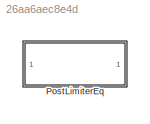
MODEL slx_26aa6aec8e4d
KIND library
CONFIG AbsTol = auto
CONFIG EnableMultiTasking = off
CONFIG FixedStep = auto
CONFIG MaxStep = auto
CONFIG MinStep = auto
CONFIG RelTol = 1e-3
CONFIG SampleTimeConstraint = Unconstrained
CONFIG SolverName = VariableStepAuto
CONFIG StartTime = 0.0
CONFIG StopTime = 10.0
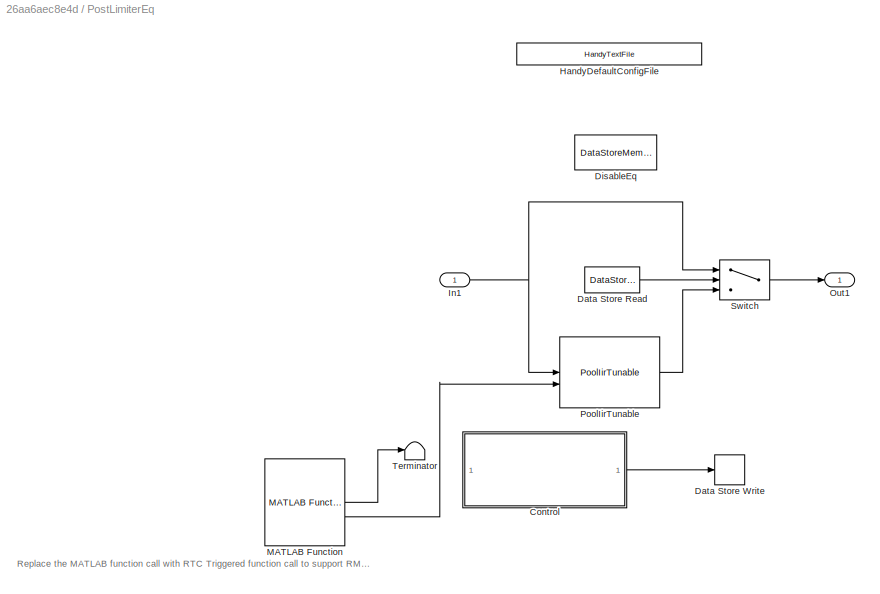
BLOCK [SubSystem] PostLimiterEq
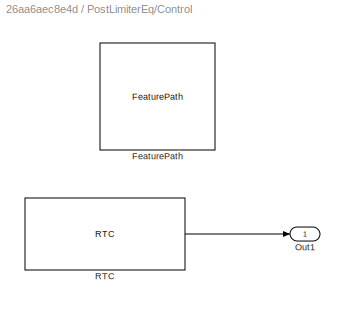
BLOCK [SubSystem] PostLimiterEq/Control
BLOCK [Reference] PostLimiterEq/Control/FeaturePath  REF=FeaturePath/FeaturePath
  SourceBlock = FeaturePath/FeaturePath
  SourceProductName = Bose Talaria
  SourceType = Talaria Feature Path
BLOCK [Outport] PostLimiterEq/Control/Out1
BLOCK [Reference] PostLimiterEq/Control/RTC  REF=RTC/RTC
  SourceBlock = RTC/RTC
  SourceProductName = Bose Talaria
  SourceType = Talaria RTC Receive
BLOCK [DataStoreRead] PostLimiterEq/Data Store Read
  DataStoreName = DisableEQ
  IndexOptions = Index vector (dialog)
  Indices = 1
  OutputSizes = 1
BLOCK [DataStoreWrite] PostLimiterEq/Data Store Write
  DataStoreName = DisableEQ
  IndexOptions = Index vector (dialog)
  Indices = 1
  OutputSizes = 1
BLOCK [DataStoreMemory] PostLimiterEq/DisableEq
  DataStoreName = DisableEQ
  ReadBeforeWriteMsg = warning
  ShowAdditionalParam = off
  WriteAfterReadMsg = warning
  WriteAfterWriteMsg = warning
BLOCK [Reference] PostLimiterEq/HandyDefaultConfigFile  REF=HandyTextFile/HandyTextFile
  SourceBlock = HandyTextFile/HandyTextFile
  SourceProductName = Bose Talaria
  SourceType = Talaria Handy Text File
BLOCK [Inport] PostLimiterEq/In1
BLOCK [Reference] PostLimiterEq/MATLAB Function  REF=Ann1Path/Ann1path/MATLAB Function
  LibrarySourceBlock = simulink/User-Defined\nFunctions/MATLAB Function
  SourceBlock = Ann1Path/Ann1path/MATLAB Function
  SourceType = SubSystem
BLOCK [Outport] PostLimiterEq/Out1
BLOCK [Reference] PostLimiterEq/PoolIirTunable  REF=PoolIir/PoolIirTunable
  SourceBlock = PoolIir/PoolIirTunable
  SourceType = Bose Pool IIR Tunable
BLOCK [Switch] PostLimiterEq/Switch
  Criteria = u2 > Threshold
  InputSameDT = off
  SaturateOnIntegerOverflow = off
BLOCK [Terminator] PostLimiterEq/Terminator
ANNOTATION PostLimiterEq: Replace the MATLAB function call with RTC Triggered function call to support RMDL Shutdown
LINE PostLimiterEq/Control/RTC:1 -> PostLimiterEq/Control/Out1:1
LINE PostLimiterEq/Control:1 -> PostLimiterEq/Data Store Write:1
LINE PostLimiterEq/Data Store Read:1 -> PostLimiterEq/Switch:2
NET PostLimiterEq/In1:1 -> PostLimiterEq/PoolIirTunable:1, PostLimiterEq/Switch:1
LINE PostLimiterEq/MATLAB Function:1 -> PostLimiterEq/Terminator:1
LINE PostLimiterEq/MATLAB Function:2 -> PostLimiterEq/PoolIirTunable:2
LINE PostLimiterEq/PoolIirTunable:1 -> PostLimiterEq/Switch:3
LINE PostLimiterEq/Switch:1 -> PostLimiterEq/Out1:1
note: NET lines group one-source signal fan-out (src -> all destinations, sorted); 1:1 wires keep LINE
